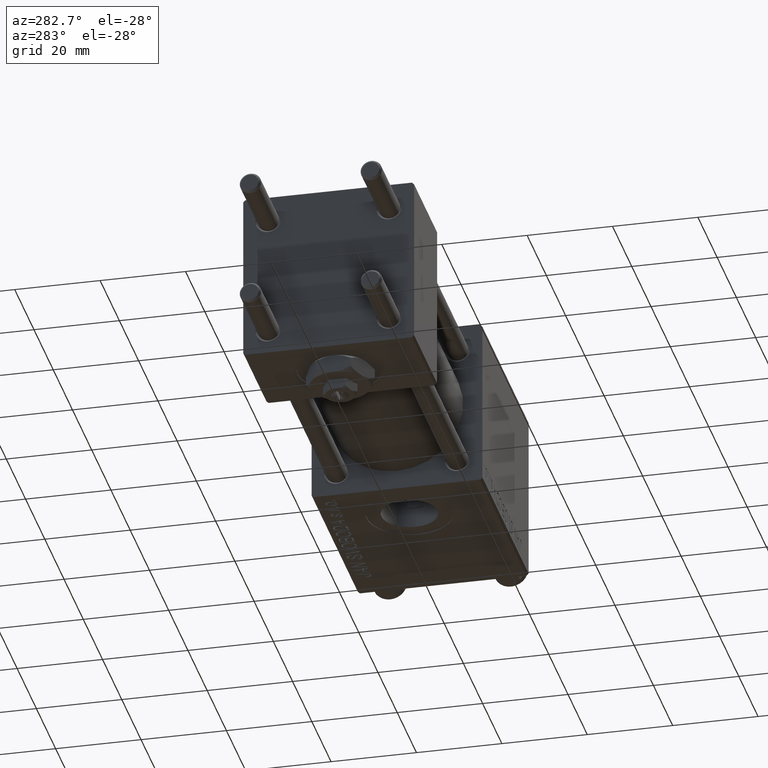
[diagram: clean part render]
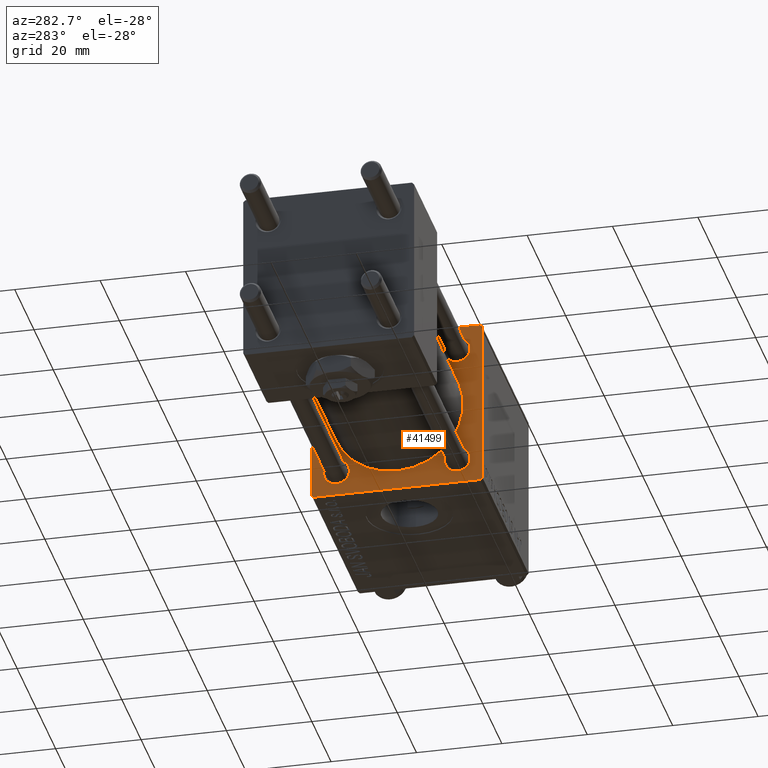
[diagram: same view with one face highlighted and labeled with its STEP entity id]
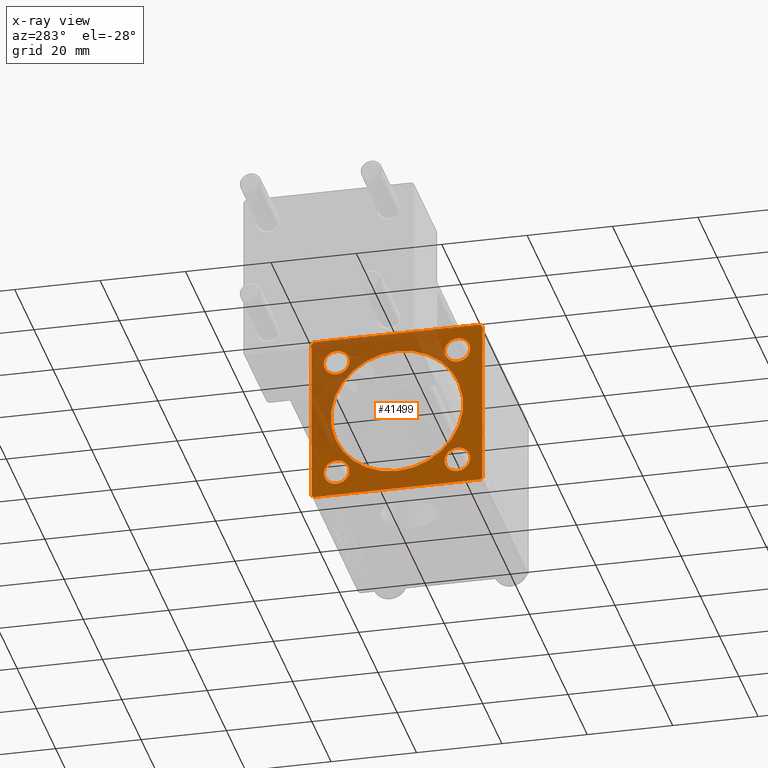
[diagram: x-ray of the same camera — body ghosted, the highlighted face saturated]
A machine part, auxiliary view. The second image highlights one B-rep face of the part: STEP entity #41499.
The next image is the same camera in x-ray: the body ghosted, the highlighted face saturated — about 37% of this face is hidden behind the body in this view.
In plain terms, the highlighted planar face has unit normal (-1, 0, 0).
Its self-contained STEP definition (entity closure, byte-faithful):
#505 = LINE ( 'NONE', #12300, #14256 ) ;
#919 = VECTOR ( 'NONE', #45931, 1000.000000000000000 ) ;
#1020 = VERTEX_POINT ( 'NONE', #33647 ) ;
#1042 = DIRECTION ( 'NONE',  ( 0.000000000000000000, -1.000000000000000000, -8.673617379884035472E-17 ) ) ;
#1508 = EDGE_CURVE ( 'NONE', #7464, #5962, #42681, .T. ) ;
#1600 = VERTEX_POINT ( 'NONE', #17013 ) ;
#1908 = CIRCLE ( 'NONE', #31214, 3.000000000000000888 ) ;
#1968 = DIRECTION ( 'NONE',  ( 1.000000000000000000, 0.000000000000000000, 0.000000000000000000 ) ) ;
#2393 = AXIS2_PLACEMENT_3D ( 'NONE', #29437, #17873, #21312 ) ;
#3067 = VERTEX_POINT ( 'NONE', #28960 ) ;
#3329 = EDGE_CURVE ( 'NONE', #37268, #7665, #50901, .T. ) ;
#3394 = CIRCLE ( 'NONE', #33568, 3.000000000000004441 ) ;
#3558 = CARTESIAN_POINT ( 'NONE',  ( 71.00000000000001421, -20.00000000000000355, 19.99999999999999645 ) ) ;
#3792 = EDGE_CURVE ( 'NONE', #49248, #49065, #3394, .T. ) ;
#3938 = ORIENTED_EDGE ( 'NONE', *, *, #38334, .T. ) ;
#4509 = CARTESIAN_POINT ( 'NONE',  ( 71.00000000000001421, 14.15000000000000036, 14.15000000000000036 ) ) ;
#4510 = DIRECTION ( 'NONE',  ( -0.000000000000000000, -0.7071067811865474617, -0.7071067811865474617 ) ) ;
#4589 = PLANE ( 'NONE',  #44458 ) ;
#4848 = CARTESIAN_POINT ( 'NONE',  ( 71.00000000000001421, 19.49999999999999645, -20.00000000000000000 ) ) ;
#5457 = CARTESIAN_POINT ( 'NONE',  ( 71.00000000000001421, 14.15000000000000036, 11.14999999999999858 ) ) ;
#5805 = LINE ( 'NONE', #21807, #23173 ) ;
#5962 = VERTEX_POINT ( 'NONE', #9965 ) ;
#6621 = CARTESIAN_POINT ( 'NONE',  ( 71.00000000000001421, 19.74999999999999645, -19.74999999999999645 ) ) ;
#6753 = CARTESIAN_POINT ( 'NONE',  ( 71.00000000000001421, -14.15000000000000036, 14.15000000000000036 ) ) ;
#7365 = EDGE_CURVE ( 'NONE', #49065, #49248, #44940, .T. ) ;
#7408 = AXIS2_PLACEMENT_3D ( 'NONE', #47096, #39193, #26371 ) ;
#7464 = VERTEX_POINT ( 'NONE', #27709 ) ;
#7525 = EDGE_CURVE ( 'NONE', #18634, #27463, #13544, .T. ) ;
#7665 = VERTEX_POINT ( 'NONE', #35255 ) ;
#7778 = ORIENTED_EDGE ( 'NONE', *, *, #30698, .T. ) ;
#7963 = EDGE_CURVE ( 'NONE', #7665, #3067, #5805, .T. ) ;
#7996 = FACE_OUTER_BOUND ( 'NONE', #29748, .T. ) ;
#9687 = ORIENTED_EDGE ( 'NONE', *, *, #7963, .T. ) ;
#9965 = CARTESIAN_POINT ( 'NONE',  ( 71.00000000000001421, -14.15000000000000036, -17.14999999999997726 ) ) ;
#10251 = VECTOR ( 'NONE', #4510, 1000.000000000000114 ) ;
#10576 = CARTESIAN_POINT ( 'NONE',  ( 71.00000000000001421, 14.15000000000000036, 14.15000000000000036 ) ) ;
#11044 = VERTEX_POINT ( 'NONE', #5457 ) ;
#11230 = DIRECTION ( 'NONE',  ( 1.000000000000000000, 0.000000000000000000, 0.000000000000000000 ) ) ;
#11656 = VECTOR ( 'NONE', #11864, 1000.000000000000114 ) ;
#11823 = EDGE_LOOP ( 'NONE', ( #40657, #32898 ) ) ;
#11864 = DIRECTION ( 'NONE',  ( -0.000000000000000000, 0.7071067811865573427, 0.7071067811865376918 ) ) ;
#12300 = CARTESIAN_POINT ( 'NONE',  ( 71.00000000000001421, 19.99999999999999645, 20.00000000000000000 ) ) ;
#12435 = ORIENTED_EDGE ( 'NONE', *, *, #7525, .T. ) ;
#12703 = DIRECTION ( 'NONE',  ( 1.000000000000000000, 0.000000000000000000, 0.000000000000000000 ) ) ;
#12776 = VECTOR ( 'NONE', #31566, 1000.000000000000000 ) ;
#13544 = LINE ( 'NONE', #49251, #30669 ) ;
#13999 = ORIENTED_EDGE ( 'NONE', *, *, #7365, .T. ) ;
#14255 = DIRECTION ( 'NONE',  ( 0.000000000000000000, 0.000000000000000000, 1.000000000000000000 ) ) ;
#14256 = VECTOR ( 'NONE', #1042, 1000.000000000000000 ) ;
#14426 = CARTESIAN_POINT ( 'NONE',  ( 71.00000000000001421, 19.99999999999999645, -20.00000000000000000 ) ) ;
#14514 = CIRCLE ( 'NONE', #49743, 15.50000000000000000 ) ;
#14752 = AXIS2_PLACEMENT_3D ( 'NONE', #6753, #38757, #16697 ) ;
#15122 = VERTEX_POINT ( 'NONE', #47822 ) ;
#15593 = EDGE_LOOP ( 'NONE', ( #16840, #13999 ) ) ;
#16045 = EDGE_LOOP ( 'NONE', ( #21506, #41190 ) ) ;
#16381 = CARTESIAN_POINT ( 'NONE',  ( 71.00000000000001421, 0.000000000000000000, 0.000000000000000000 ) ) ;
#16443 = DIRECTION ( 'NONE',  ( 1.000000000000000000, 0.000000000000000000, 0.000000000000000000 ) ) ;
#16697 = DIRECTION ( 'NONE',  ( 0.000000000000000000, 0.000000000000000000, 1.000000000000000000 ) ) ;
#16840 = ORIENTED_EDGE ( 'NONE', *, *, #3792, .T. ) ;
#17013 = CARTESIAN_POINT ( 'NONE',  ( 71.00000000000001421, 19.99999999999999645, -19.50000000000000000 ) ) ;
#17873 = DIRECTION ( 'NONE',  ( 1.000000000000000000, 0.000000000000000000, 0.000000000000000000 ) ) ;
#17960 = CARTESIAN_POINT ( 'NONE',  ( 71.00000000000001421, -14.15000000000000036, 11.14999999999999858 ) ) ;
#18634 = VERTEX_POINT ( 'NONE', #38016 ) ;
#18637 = VECTOR ( 'NONE', #26914, 1000.000000000000000 ) ;
#19453 = CARTESIAN_POINT ( 'NONE',  ( 71.00000000000001421, -14.15000000000000036, -14.15000000000000036 ) ) ;
#20049 = FACE_BOUND ( 'NONE', #11823, .T. ) ;
#21312 = DIRECTION ( 'NONE',  ( 0.000000000000000000, 0.000000000000000000, 1.000000000000000000 ) ) ;
#21506 = ORIENTED_EDGE ( 'NONE', *, *, #32201, .T. ) ;
#21807 = CARTESIAN_POINT ( 'NONE',  ( 71.00000000000001421, -19.75000000000028066, -19.74999999999973355 ) ) ;
#22539 = VERTEX_POINT ( 'NONE', #27706 ) ;
#22573 = AXIS2_PLACEMENT_3D ( 'NONE', #47195, #11230, #27232 ) ;
#22659 = DIRECTION ( 'NONE',  ( 0.000000000000000000, 0.000000000000000000, -1.000000000000000000 ) ) ;
#22878 = EDGE_CURVE ( 'NONE', #5962, #7464, #43643, .T. ) ;
#23173 = VECTOR ( 'NONE', #49637, 999.9999999999998863 ) ;
#23437 = LINE ( 'NONE', #39431, #12776 ) ;
#23504 = EDGE_CURVE ( 'NONE', #1020, #31659, #43680, .T. ) ;
#23540 = AXIS2_PLACEMENT_3D ( 'NONE', #19453, #48079, #24167 ) ;
#23710 = ORIENTED_EDGE ( 'NONE', *, *, #22878, .T. ) ;
#24167 = DIRECTION ( 'NONE',  ( 0.000000000000000000, 0.000000000000000000, 1.000000000000000000 ) ) ;
#24192 = CARTESIAN_POINT ( 'NONE',  ( 71.00000000000001421, -19.74999999999973710, 19.75000000000028422 ) ) ;
#24311 = CARTESIAN_POINT ( 'NONE',  ( 71.00000000000001421, 14.15000000000000036, -14.15000000000000036 ) ) ;
#25003 = CARTESIAN_POINT ( 'NONE',  ( 71.00000000000001421, 14.15000000000000036, -17.14999999999997726 ) ) ;
#25030 = CIRCLE ( 'NONE', #2393, 2.999999999999976463 ) ;
#26371 = DIRECTION ( 'NONE',  ( 0.000000000000000000, 0.000000000000000000, -1.000000000000000000 ) ) ;
#26586 = CARTESIAN_POINT ( 'NONE',  ( 71.00000000000001421, 0.000000000000000000, 0.000000000000000000 ) ) ;
#26783 = CARTESIAN_POINT ( 'NONE',  ( 71.00000000000001421, 19.99999999999999645, 19.49999999999998579 ) ) ;
#26914 = DIRECTION ( 'NONE',  ( 0.000000000000000000, 8.673617379884036705E-17, -1.000000000000000000 ) ) ;
#27232 = DIRECTION ( 'NONE',  ( 0.000000000000000000, 0.000000000000000000, 1.000000000000000000 ) ) ;
#27463 = VERTEX_POINT ( 'NONE', #26783 ) ;
#27706 = CARTESIAN_POINT ( 'NONE',  ( 71.00000000000001421, 14.15000000000000036, 17.15000000000000568 ) ) ;
#27709 = CARTESIAN_POINT ( 'NONE',  ( 71.00000000000001421, -14.15000000000000036, -11.15000000000002522 ) ) ;
#27925 = DIRECTION ( 'NONE',  ( -0.000000000000000000, 0.000000000000000000, 1.000000000000000000 ) ) ;
#28163 = CARTESIAN_POINT ( 'NONE',  ( 71.00000000000001421, -14.15000000000000036, 14.15000000000000036 ) ) ;
#28178 = FACE_BOUND ( 'NONE', #29849, .T. ) ;
#28633 = DIRECTION ( 'NONE',  ( 0.000000000000000000, 0.000000000000000000, 1.000000000000000000 ) ) ;
#28960 = CARTESIAN_POINT ( 'NONE',  ( 71.00000000000001421, -20.00000000000000000, -19.50000000000001066 ) ) ;
#28995 = EDGE_CURVE ( 'NONE', #27463, #1600, #23437, .T. ) ;
#29041 = ORIENTED_EDGE ( 'NONE', *, *, #28995, .T. ) ;
#29233 = CIRCLE ( 'NONE', #7408, 15.50000000000000000 ) ;
#29437 = CARTESIAN_POINT ( 'NONE',  ( 71.00000000000001421, 14.15000000000000036, -14.15000000000000036 ) ) ;
#29690 = VERTEX_POINT ( 'NONE', #40829 ) ;
#29748 = EDGE_LOOP ( 'NONE', ( #45098, #9687, #37989, #3938, #51048, #12435, #29041, #33837 ) ) ;
#29849 = EDGE_LOOP ( 'NONE', ( #7778, #32592 ) ) ;
#30336 = EDGE_CURVE ( 'NONE', #1600, #37268, #47533, .T. ) ;
#30669 = VECTOR ( 'NONE', #38176, 999.9999999999998863 ) ;
#30698 = EDGE_CURVE ( 'NONE', #22539, #11044, #1908, .T. ) ;
#30853 = LINE ( 'NONE', #3558, #18637 ) ;
#30882 = CARTESIAN_POINT ( 'NONE',  ( 71.00000000000001421, -19.50000000000001776, 19.99999999999999645 ) ) ;
#31214 = AXIS2_PLACEMENT_3D ( 'NONE', #10576, #38650, #14255 ) ;
#31566 = DIRECTION ( 'NONE',  ( 0.000000000000000000, 0.000000000000000000, -1.000000000000000000 ) ) ;
#31659 = VERTEX_POINT ( 'NONE', #25003 ) ;
#32201 = EDGE_CURVE ( 'NONE', #15122, #29690, #14514, .T. ) ;
#32382 = DIRECTION ( 'NONE',  ( -1.000000000000000000, 0.000000000000000000, -0.000000000000000000 ) ) ;
#32592 = ORIENTED_EDGE ( 'NONE', *, *, #51397, .T. ) ;
#32814 = AXIS2_PLACEMENT_3D ( 'NONE', #24311, #16443, #40312 ) ;
#32898 = ORIENTED_EDGE ( 'NONE', *, *, #36111, .T. ) ;
#33568 = AXIS2_PLACEMENT_3D ( 'NONE', #28163, #12703, #48390 ) ;
#33647 = CARTESIAN_POINT ( 'NONE',  ( 71.00000000000001421, 14.15000000000000036, -11.15000000000002522 ) ) ;
#33837 = ORIENTED_EDGE ( 'NONE', *, *, #30336, .T. ) ;
#35244 = EDGE_LOOP ( 'NONE', ( #44154, #23710 ) ) ;
#35255 = CARTESIAN_POINT ( 'NONE',  ( 71.00000000000001421, -19.50000000000002487, -20.00000000000000000 ) ) ;
#35931 = EDGE_CURVE ( 'NONE', #29690, #15122, #29233, .T. ) ;
#36052 = FACE_BOUND ( 'NONE', #35244, .T. ) ;
#36111 = EDGE_CURVE ( 'NONE', #31659, #1020, #25030, .T. ) ;
#37268 = VERTEX_POINT ( 'NONE', #4848 ) ;
#37989 = ORIENTED_EDGE ( 'NONE', *, *, #48912, .F. ) ;
#38016 = CARTESIAN_POINT ( 'NONE',  ( 71.00000000000001421, 19.49999999999996803, 20.00000000000000000 ) ) ;
#38154 = VERTEX_POINT ( 'NONE', #44746 ) ;
#38176 = DIRECTION ( 'NONE',  ( 0.000000000000000000, 0.7071067811865574537, -0.7071067811865376918 ) ) ;
#38334 = EDGE_CURVE ( 'NONE', #38154, #51505, #39927, .T. ) ;
#38650 = DIRECTION ( 'NONE',  ( 1.000000000000000000, 0.000000000000000000, 0.000000000000000000 ) ) ;
#38757 = DIRECTION ( 'NONE',  ( 1.000000000000000000, 0.000000000000000000, 0.000000000000000000 ) ) ;
#39166 = CARTESIAN_POINT ( 'NONE',  ( 71.00000000000001421, -14.15000000000000036, 17.15000000000000568 ) ) ;
#39193 = DIRECTION ( 'NONE',  ( 1.000000000000000000, 0.000000000000000000, 0.000000000000000000 ) ) ;
#39431 = CARTESIAN_POINT ( 'NONE',  ( 71.00000000000001421, 19.99999999999999645, 20.00000000000000000 ) ) ;
#39927 = LINE ( 'NONE', #24192, #11656 ) ;
#40110 = EDGE_CURVE ( 'NONE', #18634, #51505, #505, .T. ) ;
#40312 = DIRECTION ( 'NONE',  ( 0.000000000000000000, 0.000000000000000000, 1.000000000000000000 ) ) ;
#40477 = CIRCLE ( 'NONE', #41360, 3.000000000000000888 ) ;
#40657 = ORIENTED_EDGE ( 'NONE', *, *, #23504, .T. ) ;
#40829 = CARTESIAN_POINT ( 'NONE',  ( 71.00000000000001421, 1.898202538678397557E-15, -15.50000000000000000 ) ) ;
#41190 = ORIENTED_EDGE ( 'NONE', *, *, #35931, .T. ) ;
#41360 = AXIS2_PLACEMENT_3D ( 'NONE', #4509, #49130, #28633 ) ;
#41499 = ADVANCED_FACE ( 'NONE', ( #48409, #28178, #20049, #36052, #44462, #7996 ), #4589, .T. ) ;
#42681 = CIRCLE ( 'NONE', #22573, 2.999999999999976463 ) ;
#43643 = CIRCLE ( 'NONE', #23540, 2.999999999999976463 ) ;
#43680 = CIRCLE ( 'NONE', #32814, 2.999999999999976463 ) ;
#44154 = ORIENTED_EDGE ( 'NONE', *, *, #1508, .T. ) ;
#44458 = AXIS2_PLACEMENT_3D ( 'NONE', #16381, #32382, #27925 ) ;
#44462 = FACE_BOUND ( 'NONE', #16045, .T. ) ;
#44746 = CARTESIAN_POINT ( 'NONE',  ( 71.00000000000001421, -20.00000000000000355, 19.50000000000002487 ) ) ;
#44940 = CIRCLE ( 'NONE', #14752, 3.000000000000004441 ) ;
#45098 = ORIENTED_EDGE ( 'NONE', *, *, #3329, .T. ) ;
#45931 = DIRECTION ( 'NONE',  ( 0.000000000000000000, -1.000000000000000000, 0.000000000000000000 ) ) ;
#47096 = CARTESIAN_POINT ( 'NONE',  ( 71.00000000000001421, 0.000000000000000000, 0.000000000000000000 ) ) ;
#47195 = CARTESIAN_POINT ( 'NONE',  ( 71.00000000000001421, -14.15000000000000036, -14.15000000000000036 ) ) ;
#47533 = LINE ( 'NONE', #6621, #10251 ) ;
#47822 = CARTESIAN_POINT ( 'NONE',  ( 71.00000000000001421, 0.000000000000000000, 15.50000000000000000 ) ) ;
#48079 = DIRECTION ( 'NONE',  ( 1.000000000000000000, 0.000000000000000000, 0.000000000000000000 ) ) ;
#48390 = DIRECTION ( 'NONE',  ( 0.000000000000000000, 0.000000000000000000, 1.000000000000000000 ) ) ;
#48409 = FACE_BOUND ( 'NONE', #15593, .T. ) ;
#48912 = EDGE_CURVE ( 'NONE', #38154, #3067, #30853, .T. ) ;
#49065 = VERTEX_POINT ( 'NONE', #17960 ) ;
#49130 = DIRECTION ( 'NONE',  ( 1.000000000000000000, 0.000000000000000000, 0.000000000000000000 ) ) ;
#49248 = VERTEX_POINT ( 'NONE', #39166 ) ;
#49251 = CARTESIAN_POINT ( 'NONE',  ( 71.00000000000001421, 19.74999999999971578, 19.75000000000026290 ) ) ;
#49637 = DIRECTION ( 'NONE',  ( 0.000000000000000000, -0.7071067811865376918, 0.7071067811865574537 ) ) ;
#49743 = AXIS2_PLACEMENT_3D ( 'NONE', #26586, #1968, #22659 ) ;
#50901 = LINE ( 'NONE', #14426, #919 ) ;
#51048 = ORIENTED_EDGE ( 'NONE', *, *, #40110, .F. ) ;
#51397 = EDGE_CURVE ( 'NONE', #11044, #22539, #40477, .T. ) ;
#51505 = VERTEX_POINT ( 'NONE', #30882 ) ;